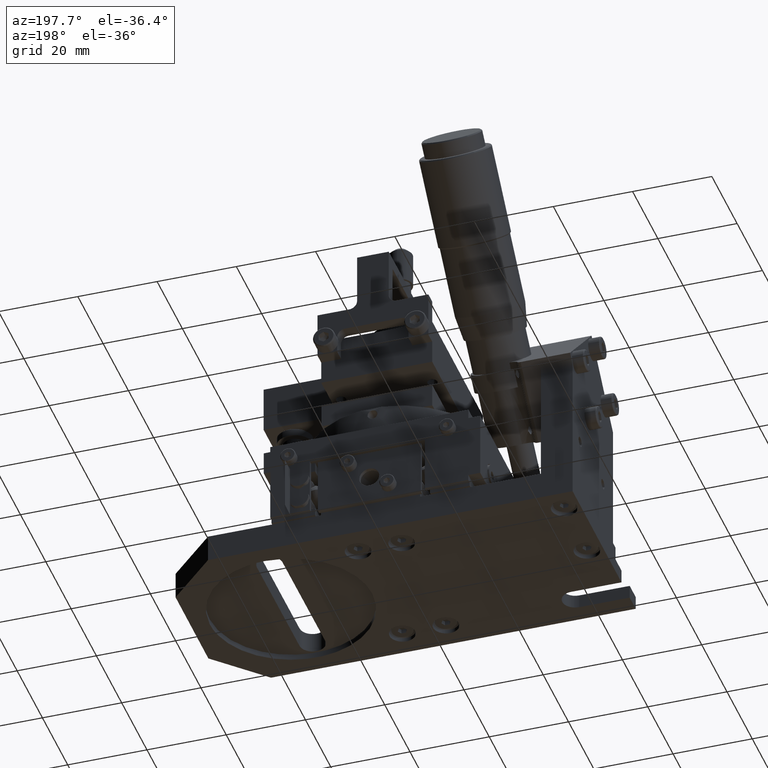
[diagram: clean part render]
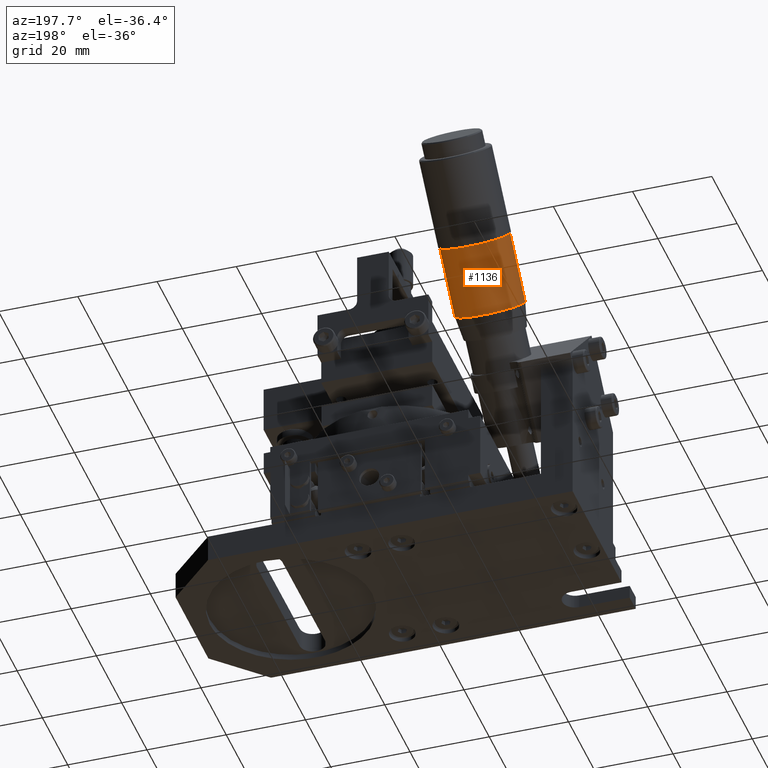
[diagram: same view with one face highlighted and labeled with its STEP entity id]
A machine part, auxiliary view. The second image highlights one B-rep face of the part: STEP entity #1136.
In plain terms, the highlighted face is a freeform B-spline surface patch.
Its self-contained STEP definition (entity closure, byte-faithful):
#1136=ADVANCED_FACE('',(#2340),#43208,.T.);
#2340=FACE_OUTER_BOUND('',#3595,.T.);
#3595=EDGE_LOOP('',(#5974,#5975,#5976,#5977,#5978,#5979));
#5974=ORIENTED_EDGE('',*,*,#35229,.T.);
#5975=ORIENTED_EDGE('',*,*,#35230,.T.);
#5976=ORIENTED_EDGE('',*,*,#35231,.T.);
#5977=ORIENTED_EDGE('',*,*,#35225,.F.);
#5978=ORIENTED_EDGE('',*,*,#35228,.F.);
#5979=ORIENTED_EDGE('',*,*,#35232,.T.);
#12370=PCURVE('',#43206,#18773);
#12373=PCURVE('',#43207,#18776);
#12377=PCURVE('',#43208,#18780);
#12378=PCURVE('',#43208,#18781);
#12379=PCURVE('',#43208,#18782);
#12380=PCURVE('',#43208,#18783);
#12381=PCURVE('',#43208,#18784);
#12382=PCURVE('',#43208,#18785);
#12384=PCURVE('',#43209,#18787);
#12386=PCURVE('',#43209,#18789);
#12393=PCURVE('',#43210,#18796);
#12399=PCURVE('',#43211,#18802);
#18773=DEFINITIONAL_REPRESENTATION('',(#25459),#93713);
#18776=DEFINITIONAL_REPRESENTATION('',(#25463),#93713);
#18780=DEFINITIONAL_REPRESENTATION('',(#25467),#93713);
#18781=DEFINITIONAL_REPRESENTATION('',(#25468),#93713);
#18782=DEFINITIONAL_REPRESENTATION('',(#25470),#93713);
#18783=DEFINITIONAL_REPRESENTATION('',(#25471),#93713);
#18784=DEFINITIONAL_REPRESENTATION('',(#25472),#93713);
#18785=DEFINITIONAL_REPRESENTATION('',(#25474),#93713);
#18787=DEFINITIONAL_REPRESENTATION('',(#25476),#93713);
#18789=DEFINITIONAL_REPRESENTATION('',(#25478),#93713);
#18796=DEFINITIONAL_REPRESENTATION('',(#25480),#93713);
#18802=DEFINITIONAL_REPRESENTATION('',(#25488),#93713);
#25459=B_SPLINE_CURVE_WITH_KNOTS('',1,(#57345,#57346),.UNSPECIFIED.,.F.,
 .F.,(2,2),(-27.3318560862312,-6.68812715183456),.UNSPECIFIED.);
#25463=B_SPLINE_CURVE_WITH_KNOTS('',1,(#57361,#57362),.UNSPECIFIED.,.F.,
 .F.,(2,2),(-54.6637121724624,-27.3318560862317),.UNSPECIFIED.);
#25467=B_SPLINE_CURVE_WITH_KNOTS('',1,(#57374,#57375),.UNSPECIFIED.,.F.,
 .F.,(2,2),(-54.6637121724624,-27.3318560862316),.UNSPECIFIED.);
#25468=B_SPLINE_CURVE_WITH_KNOTS('',1,(#57381,#57382),.UNSPECIFIED.,.F.,
 .F.,(2,2),(-27.3318560862316,-6.68812715183511),.UNSPECIFIED.);
#25469=B_SPLINE_CURVE_WITH_KNOTS('',1,(#57383,#57384),.UNSPECIFIED.,.F.,
 .F.,(2,2),(16.6390755382622,33.6390755382623),.UNSPECIFIED.);
#25470=B_SPLINE_CURVE_WITH_KNOTS('',1,(#57385,#57386),.UNSPECIFIED.,.F.,
 .F.,(2,2),(16.6390755382622,33.6390755382623),.UNSPECIFIED.);
#25471=B_SPLINE_CURVE_WITH_KNOTS('',1,(#57387,#57388),.UNSPECIFIED.,.F.,
 .F.,(2,2),(-27.3318560862312,-6.68812715183456),.UNSPECIFIED.);
#25472=B_SPLINE_CURVE_WITH_KNOTS('',1,(#57389,#57390),.UNSPECIFIED.,.F.,
 .F.,(2,2),(-54.6637121724624,-27.3318560862317),.UNSPECIFIED.);
#25473=B_SPLINE_CURVE_WITH_KNOTS('',1,(#57391,#57392),.UNSPECIFIED.,.F.,
 .F.,(2,2),(0.,17.),.UNSPECIFIED.);
#25474=B_SPLINE_CURVE_WITH_KNOTS('',1,(#57393,#57394),.UNSPECIFIED.,.F.,
 .F.,(2,2),(0.,17.),.UNSPECIFIED.);
#25476=B_SPLINE_CURVE_WITH_KNOTS('',1,(#57397,#57398),.UNSPECIFIED.,.F.,
 .F.,(2,2),(16.6390755382622,33.6390755382623),.UNSPECIFIED.);
#25478=B_SPLINE_CURVE_WITH_KNOTS('',1,(#57404,#57405),.UNSPECIFIED.,.F.,
 .F.,(2,2),(0.,17.),.UNSPECIFIED.);
#25480=B_SPLINE_CURVE_WITH_KNOTS('',1,(#57441,#57442),.UNSPECIFIED.,.F.,
 .F.,(2,2),(-27.3318560862316,-6.68812715183511),.UNSPECIFIED.);
#25488=B_SPLINE_CURVE_WITH_KNOTS('',1,(#57457,#57458),.UNSPECIFIED.,.F.,
 .F.,(2,2),(-54.6637121724624,-27.3318560862316),.UNSPECIFIED.);
#31885=SURFACE_CURVE('',#38282,(#12370,#12380),.PCURVE_S1.);
#31888=SURFACE_CURVE('',#38284,(#12373,#12381),.PCURVE_S1.);
#31889=SURFACE_CURVE('',#38285,(#12377,#12399),.PCURVE_S1.);
#31890=SURFACE_CURVE('',#38286,(#12378,#12393),.PCURVE_S1.);
#31891=SURFACE_CURVE('',#25469,(#12379,#12384),.PCURVE_S1.);
#31892=SURFACE_CURVE('',#25473,(#12382,#12386),.PCURVE_S1.);
#35225=EDGE_CURVE('',#40849,#40852,#31885,.T.);
#35228=EDGE_CURVE('',#40848,#40849,#31888,.T.);
#35229=EDGE_CURVE('',#40850,#40856,#31889,.T.);
#35230=EDGE_CURVE('',#40856,#40851,#31890,.T.);
#35231=EDGE_CURVE('',#40851,#40852,#31891,.T.);
#35232=EDGE_CURVE('',#40848,#40850,#31892,.T.);
#38282=(
BOUNDED_CURVE()
B_SPLINE_CURVE(2,(#57340,#57341,#57342,#57343,#57344),.UNSPECIFIED.,.F.,
 .F.)
B_SPLINE_CURVE_WITH_KNOTS((3,2,3),(-27.3318560862312,-17.0099916190329,
-6.68812715183456),.UNSPECIFIED.)
CURVE()
GEOMETRIC_REPRESENTATION_ITEM()
RATIONAL_B_SPLINE_CURVE((1.,0.829150145950135,1.,0.829150145950135,1.))
REPRESENTATION_ITEM('')
);
#38284=(
BOUNDED_CURVE()
B_SPLINE_CURVE(2,(#57356,#57357,#57358,#57359,#57360),.UNSPECIFIED.,.F.,
 .F.)
B_SPLINE_CURVE_WITH_KNOTS((3,2,3),(-54.6637121724624,-40.997784129347,-27.3318560862317),
 .UNSPECIFIED.)
CURVE()
GEOMETRIC_REPRESENTATION_ITEM()
RATIONAL_B_SPLINE_CURVE((1.,0.707106781186541,1.,0.707106781186541,1.))
REPRESENTATION_ITEM('')
);
#38285=(
BOUNDED_CURVE()
B_SPLINE_CURVE(2,(#57369,#57370,#57371,#57372,#57373),.UNSPECIFIED.,.F.,
 .F.)
B_SPLINE_CURVE_WITH_KNOTS((3,2,3),(-54.6637121724624,-40.997784129347,-27.3318560862316),
 .UNSPECIFIED.)
CURVE()
GEOMETRIC_REPRESENTATION_ITEM()
RATIONAL_B_SPLINE_CURVE((1.,0.707106781186537,1.,0.707106781186537,1.))
REPRESENTATION_ITEM('')
);
#38286=(
BOUNDED_CURVE()
B_SPLINE_CURVE(2,(#57376,#57377,#57378,#57379,#57380),.UNSPECIFIED.,.F.,
 .F.)
B_SPLINE_CURVE_WITH_KNOTS((3,2,3),(-27.3318560862316,-17.0099916190333,
-6.68812715183511),.UNSPECIFIED.)
CURVE()
GEOMETRIC_REPRESENTATION_ITEM()
RATIONAL_B_SPLINE_CURVE((1.,0.829150145950165,1.,0.829150145950165,1.))
REPRESENTATION_ITEM('')
);
#40848=VERTEX_POINT('',#50963);
#40849=VERTEX_POINT('',#50964);
#40850=VERTEX_POINT('',#50965);
#40851=VERTEX_POINT('',#50966);
#40852=VERTEX_POINT('',#50967);
#40856=VERTEX_POINT('',#50971);
#43206=(
BOUNDED_SURFACE()
B_SPLINE_SURFACE(2,1,((#46641,#46642),(#46643,#46644),(#46645,#46646),(#46647,
#46648),(#46649,#46650),(#46651,#46652),(#46653,#46654),(#46655,#46656),
(#46657,#46658)),.UNSPECIFIED.,.T.,.F.,.F.)
B_SPLINE_SURFACE_WITH_KNOTS((3,2,2,2,3),(2,2),(0.,38.4033975437743,76.8067950875485,
115.210192631323,153.613590175097),(0.,34.5752054045278),.UNSPECIFIED.)
GEOMETRIC_REPRESENTATION_ITEM()
RATIONAL_B_SPLINE_SURFACE(((1.,1.),(0.707106781186548,0.707106781186548),
(1.,1.),(0.707106781186548,0.707106781186548),(1.,1.),(0.707106781186548,
0.707106781186548),(1.,1.),(0.707106781186548,0.707106781186548),(1.,1.)))
REPRESENTATION_ITEM('')
SURFACE()
);
#43207=(
BOUNDED_SURFACE()
B_SPLINE_SURFACE(2,1,((#46659,#46660),(#46661,#46662),(#46663,#46664),(#46665,
#46666),(#46667,#46668),(#46669,#46670),(#46671,#46672),(#46673,#46674),
(#46675,#46676)),.UNSPECIFIED.,.T.,.F.,.F.)
B_SPLINE_SURFACE_WITH_KNOTS((3,2,2,2,3),(2,2),(0.,38.4033975437743,76.8067950875485,
115.210192631323,153.613590175097),(0.,34.5752054045278),.UNSPECIFIED.)
GEOMETRIC_REPRESENTATION_ITEM()
RATIONAL_B_SPLINE_SURFACE(((1.,1.),(0.707106781186548,0.707106781186548),
(1.,1.),(0.707106781186548,0.707106781186548),(1.,1.),(0.707106781186548,
0.707106781186548),(1.,1.),(0.707106781186548,0.707106781186548),(1.,1.)))
REPRESENTATION_ITEM('')
SURFACE()
);
#43208=(
BOUNDED_SURFACE()
B_SPLINE_SURFACE(2,1,((#46677,#46678),(#46679,#46680),(#46681,#46682),(#46683,
#46684),(#46685,#46686),(#46687,#46688),(#46689,#46690),(#46691,#46692),
(#46693,#46694)),.UNSPECIFIED.,.T.,.F.,.F.)
B_SPLINE_SURFACE_WITH_KNOTS((3,2,2,2,3),(2,2),(0.,1.5707963267949,3.14159265358979,
4.71238898038469,6.28318530717959),(0.,50.2781510765246),.UNSPECIFIED.)
GEOMETRIC_REPRESENTATION_ITEM()
RATIONAL_B_SPLINE_SURFACE(((1.,1.),(0.707106781186548,0.707106781186548),
(1.,1.),(0.707106781186548,0.707106781186548),(1.,1.),(0.707106781186548,
0.707106781186548),(1.,1.),(0.707106781186548,0.707106781186548),(1.,1.)))
REPRESENTATION_ITEM('')
SURFACE()
);
#43209=(
BOUNDED_SURFACE()
B_SPLINE_SURFACE(2,1,((#46695,#46696),(#46697,#46698),(#46699,#46700),(#46701,
#46702),(#46703,#46704),(#46705,#46706),(#46707,#46708),(#46709,#46710),
(#46711,#46712)),.UNSPECIFIED.,.T.,.F.,.F.)
B_SPLINE_SURFACE_WITH_KNOTS((3,2,2,2,3),(2,2),(0.,1.5707963267949,3.14159265358979,
4.71238898038469,6.28318530717959),(0.,50.2781510765246),.UNSPECIFIED.)
GEOMETRIC_REPRESENTATION_ITEM()
RATIONAL_B_SPLINE_SURFACE(((1.,1.),(0.707106781186548,0.707106781186548),
(1.,1.),(0.707106781186548,0.707106781186548),(1.,1.),(0.707106781186548,
0.707106781186548),(1.,1.),(0.707106781186548,0.707106781186548),(1.,1.)))
REPRESENTATION_ITEM('')
SURFACE()
);
#43210=(
BOUNDED_SURFACE()
B_SPLINE_SURFACE(2,1,((#46717,#46718),(#46719,#46720),(#46721,#46722),(#46723,
#46724),(#46725,#46726),(#46727,#46728),(#46729,#46730),(#46731,#46732),
(#46733,#46734)),.UNSPECIFIED.,.T.,.F.,.F.)
B_SPLINE_SURFACE_WITH_KNOTS((3,2,2,2,3),(2,2),(0.,1.5707963267949,3.14159265358979,
4.71238898038469,6.28318530717959),(0.,78.3760035252572),.UNSPECIFIED.)
GEOMETRIC_REPRESENTATION_ITEM()
RATIONAL_B_SPLINE_SURFACE(((1.,1.),(0.707106781186548,0.707106781186548),
(1.,1.),(0.707106781186548,0.707106781186548),(1.,1.),(0.707106781186548,
0.707106781186548),(1.,1.),(0.707106781186548,0.707106781186548),(1.,1.)))
REPRESENTATION_ITEM('')
SURFACE()
);
#43211=(
BOUNDED_SURFACE()
B_SPLINE_SURFACE(2,1,((#46735,#46736),(#46737,#46738),(#46739,#46740),(#46741,
#46742),(#46743,#46744),(#46745,#46746),(#46747,#46748),(#46749,#46750),
(#46751,#46752)),.UNSPECIFIED.,.T.,.F.,.F.)
B_SPLINE_SURFACE_WITH_KNOTS((3,2,2,2,3),(2,2),(0.,1.5707963267949,3.14159265358979,
4.71238898038469,6.28318530717959),(0.,78.3760035252572),.UNSPECIFIED.)
GEOMETRIC_REPRESENTATION_ITEM()
RATIONAL_B_SPLINE_SURFACE(((1.,1.),(0.707106781186548,0.707106781186548),
(1.,1.),(0.707106781186548,0.707106781186548),(1.,1.),(0.707106781186548,
0.707106781186548),(1.,1.),(0.707106781186548,0.707106781186548),(1.,1.)))
REPRESENTATION_ITEM('')
SURFACE()
);
#46641=CARTESIAN_POINT('',(188.820847493164,34.4572941337694,-48.6521879283741));
#46642=CARTESIAN_POINT('',(171.811886224223,29.6013507081342,-18.9442785646374));
#46643=CARTESIAN_POINT('',(188.820847493164,34.4572941337694,-48.6521879283741));
#46644=CARTESIAN_POINT('',(154.238891817851,17.5882305963092,-30.969137281277));
#46645=CARTESIAN_POINT('',(188.820847493164,34.4572941337694,-48.6521879283741));
#46646=CARTESIAN_POINT('',(171.236307759155,5.15657131968051,-43.3894477979576));
#46647=CARTESIAN_POINT('',(188.820847493164,34.4572941337694,-48.6521879283741));
#46648=CARTESIAN_POINT('',(188.233723700459,-7.27508795694819,-55.8097583146381));
#46649=CARTESIAN_POINT('',(188.820847493164,34.4572941337694,-48.6521879283741));
#46650=CARTESIAN_POINT('',(205.80671810683,4.73803215487674,-43.7848995979985));
#46651=CARTESIAN_POINT('',(188.820847493164,34.4572941337694,-48.6521879283741));
#46652=CARTESIAN_POINT('',(223.379712513202,16.7511522667017,-31.7600408813589));
#46653=CARTESIAN_POINT('',(188.820847493164,34.4572941337694,-48.6521879283741));
#46654=CARTESIAN_POINT('',(206.382296571898,29.1828115433304,-19.3397303646784));
#46655=CARTESIAN_POINT('',(188.820847493164,34.4572941337694,-48.6521879283741));
#46656=CARTESIAN_POINT('',(189.384880630594,41.6144708199591,-6.9194198479978));
#46657=CARTESIAN_POINT('',(188.820847493164,34.4572941337694,-48.6521879283741));
#46658=CARTESIAN_POINT('',(171.811886224223,29.6013507081342,-18.9442785646374));
#46659=CARTESIAN_POINT('',(188.820847493164,34.4572941337694,-48.6521879283741));
#46660=CARTESIAN_POINT('',(171.811886224223,29.6013507081342,-18.9442785646374));
#46661=CARTESIAN_POINT('',(188.820847493164,34.4572941337694,-48.6521879283741));
#46662=CARTESIAN_POINT('',(154.238891817851,17.5882305963092,-30.969137281277));
#46663=CARTESIAN_POINT('',(188.820847493164,34.4572941337694,-48.6521879283741));
#46664=CARTESIAN_POINT('',(171.236307759155,5.15657131968051,-43.3894477979576));
#46665=CARTESIAN_POINT('',(188.820847493164,34.4572941337694,-48.6521879283741));
#46666=CARTESIAN_POINT('',(188.233723700459,-7.27508795694819,-55.8097583146381));
#46667=CARTESIAN_POINT('',(188.820847493164,34.4572941337694,-48.6521879283741));
#46668=CARTESIAN_POINT('',(205.80671810683,4.73803215487674,-43.7848995979985));
#46669=CARTESIAN_POINT('',(188.820847493164,34.4572941337694,-48.6521879283741));
#46670=CARTESIAN_POINT('',(223.379712513202,16.7511522667017,-31.7600408813589));
#46671=CARTESIAN_POINT('',(188.820847493164,34.4572941337694,-48.6521879283741));
#46672=CARTESIAN_POINT('',(206.382296571898,29.1828115433304,-19.3397303646784));
#46673=CARTESIAN_POINT('',(188.820847493164,34.4572941337694,-48.6521879283741));
#46674=CARTESIAN_POINT('',(189.384880630594,41.6144708199591,-6.9194198479978));
#46675=CARTESIAN_POINT('',(188.820847493164,34.4572941337694,-48.6521879283741));
#46676=CARTESIAN_POINT('',(171.811886224223,29.6013507081342,-18.9442785646374));
#46677=CARTESIAN_POINT('',(188.832624551915,45.9400552530171,-72.4386031076803));
#46678=CARTESIAN_POINT('',(188.808881541142,10.3880336812849,-36.8865894641979));
#46679=CARTESIAN_POINT('',(197.532623581847,45.9371501549717,-72.4356980102827));
#46680=CARTESIAN_POINT('',(197.508880571074,10.3851285832394,-36.8836843668003));
#46681=CARTESIAN_POINT('',(197.532623581847,52.0889784653527,-66.2838683280179));
#46682=CARTESIAN_POINT('',(197.508880571074,16.5369568936205,-30.7318546845355));
#46683=CARTESIAN_POINT('',(197.532623581847,58.2408067757337,-60.1320386457531));
#46684=CARTESIAN_POINT('',(197.508880571074,22.6887852040016,-24.5800250022706));
#46685=CARTESIAN_POINT('',(188.832624551915,58.2437118737792,-60.1349437431507));
#46686=CARTESIAN_POINT('',(188.808881541142,22.6916903020471,-24.5829300996681));
#46687=CARTESIAN_POINT('',(180.132625521984,58.2466169718247,-60.1378488405483));
#46688=CARTESIAN_POINT('',(180.10888251121,22.6945954000926,-24.5858351970657));
#46689=CARTESIAN_POINT('',(180.132625521984,52.0947886614436,-66.2896785228131));
#46690=CARTESIAN_POINT('',(180.10888251121,16.5427670897115,-30.7376648793306));
#46691=CARTESIAN_POINT('',(180.132625521984,45.9429603510626,-72.4415082050779));
#46692=CARTESIAN_POINT('',(180.10888251121,10.3909387793304,-36.8894945615954));
#46693=CARTESIAN_POINT('',(188.832624551915,45.9400552530171,-72.4386031076803));
#46694=CARTESIAN_POINT('',(188.808881541142,10.3880336812849,-36.8865894641979));
#46695=CARTESIAN_POINT('',(188.832624551915,45.9400552530171,-72.4386031076803));
#46696=CARTESIAN_POINT('',(188.808881541142,10.3880336812849,-36.8865894641979));
#46697=CARTESIAN_POINT('',(197.532623581847,45.9371501549717,-72.4356980102827));
#46698=CARTESIAN_POINT('',(197.508880571074,10.3851285832394,-36.8836843668003));
#46699=CARTESIAN_POINT('',(197.532623581847,52.0889784653527,-66.2838683280179));
#46700=CARTESIAN_POINT('',(197.508880571074,16.5369568936205,-30.7318546845355));
#46701=CARTESIAN_POINT('',(197.532623581847,58.2408067757337,-60.1320386457531));
#46702=CARTESIAN_POINT('',(197.508880571074,22.6887852040016,-24.5800250022706));
#46703=CARTESIAN_POINT('',(188.832624551915,58.2437118737792,-60.1349437431507));
#46704=CARTESIAN_POINT('',(188.808881541142,22.6916903020471,-24.5829300996681));
#46705=CARTESIAN_POINT('',(180.132625521984,58.2466169718247,-60.1378488405483));
#46706=CARTESIAN_POINT('',(180.10888251121,22.6945954000926,-24.5858351970657));
#46707=CARTESIAN_POINT('',(180.132625521984,52.0947886614436,-66.2896785228131));
#46708=CARTESIAN_POINT('',(180.10888251121,16.5427670897115,-30.7376648793306));
#46709=CARTESIAN_POINT('',(180.132625521984,45.9429603510626,-72.4415082050779));
#46710=CARTESIAN_POINT('',(180.10888251121,10.3909387793304,-36.8894945615954));
#46711=CARTESIAN_POINT('',(188.832624551915,45.9400552530171,-72.4386031076803));
#46712=CARTESIAN_POINT('',(188.808881541142,10.3880336812849,-36.8865894641979));
#46717=CARTESIAN_POINT('',(188.852156552478,81.3384737264375,-95.5333570663427));
#46718=CARTESIAN_POINT('',(180.732493472944,32.4432511684804,-34.8198807116336));
#46719=CARTESIAN_POINT('',(188.852156552478,81.3384737264375,-95.5333570663427));
#46720=CARTESIAN_POINT('',(172.375718361299,26.7304545418957,-40.5382595900697));
#46721=CARTESIAN_POINT('',(188.852156552478,81.3384737264375,-95.5333570663427));
#46722=CARTESIAN_POINT('',(180.458779176994,20.8186231011639,-46.4446941682925));
#46723=CARTESIAN_POINT('',(188.852156552478,81.3384737264375,-95.5333570663427));
#46724=CARTESIAN_POINT('',(188.54183999269,14.9067916604321,-52.3511287465154));
#46725=CARTESIAN_POINT('',(188.852156552478,81.3384737264375,-95.5333570663427));
#46726=CARTESIAN_POINT('',(196.898615104335,20.6195882870167,-46.6327498680792));
#46727=CARTESIAN_POINT('',(188.852156552478,81.3384737264375,-95.5333570663427));
#46728=CARTESIAN_POINT('',(205.255390215981,26.3323849136014,-40.9143709896431));
#46729=CARTESIAN_POINT('',(188.852156552478,81.3384737264375,-95.5333570663427));
#46730=CARTESIAN_POINT('',(197.172329400286,32.2442163543332,-35.0079364114203));
#46731=CARTESIAN_POINT('',(188.852156552478,81.3384737264375,-95.5333570663427));
#46732=CARTESIAN_POINT('',(189.08926858459,38.156047795065,-29.1015018331975));
#46733=CARTESIAN_POINT('',(188.852156552478,81.3384737264375,-95.5333570663427));
#46734=CARTESIAN_POINT('',(180.732493472944,32.4432511684804,-34.8198807116336));
#46735=CARTESIAN_POINT('',(188.852156552478,81.3384737264375,-95.5333570663427));
#46736=CARTESIAN_POINT('',(180.732493472944,32.4432511684804,-34.8198807116336));
#46737=CARTESIAN_POINT('',(188.852156552478,81.3384737264375,-95.5333570663427));
#46738=CARTESIAN_POINT('',(172.375718361299,26.7304545418957,-40.5382595900697));
#46739=CARTESIAN_POINT('',(188.852156552478,81.3384737264375,-95.5333570663427));
#46740=CARTESIAN_POINT('',(180.458779176994,20.8186231011639,-46.4446941682925));
#46741=CARTESIAN_POINT('',(188.852156552478,81.3384737264375,-95.5333570663427));
#46742=CARTESIAN_POINT('',(188.54183999269,14.9067916604321,-52.3511287465154));
#46743=CARTESIAN_POINT('',(188.852156552478,81.3384737264375,-95.5333570663427));
#46744=CARTESIAN_POINT('',(196.898615104335,20.6195882870167,-46.6327498680792));
#46745=CARTESIAN_POINT('',(188.852156552478,81.3384737264375,-95.5333570663427));
#46746=CARTESIAN_POINT('',(205.255390215981,26.3323849136014,-40.9143709896431));
#46747=CARTESIAN_POINT('',(188.852156552478,81.3384737264375,-95.5333570663427));
#46748=CARTESIAN_POINT('',(197.172329400286,32.2442163543332,-35.0079364114203));
#46749=CARTESIAN_POINT('',(188.852156552478,81.3384737264375,-95.5333570663427));
#46750=CARTESIAN_POINT('',(189.08926858459,38.156047795065,-29.1015018331975));
#46751=CARTESIAN_POINT('',(188.852156552478,81.3384737264375,-95.5333570663427));
#46752=CARTESIAN_POINT('',(180.732493472944,32.4432511684804,-34.8198807116336));
#50963=CARTESIAN_POINT('',(194.865304504849,23.8816336017784,-46.9201533600215));
#50964=CARTESIAN_POINT('',(182.768173624282,32.7292966731142,-38.0805672478477));
#50965=CARTESIAN_POINT('',(194.873332468776,35.9024488819496,-58.9409659595008));
#50966=CARTESIAN_POINT('',(188.824767028492,34.1744521072367,-60.6730025856787));
#50967=CARTESIAN_POINT('',(188.816739064565,22.1536368270654,-48.6521899861995));
#50971=CARTESIAN_POINT('',(182.776201588208,44.7501119532856,-50.1013798473272));
#57340=CARTESIAN_POINT('',(182.768173624282,32.7292966731142,-38.0805672478477));
#57341=CARTESIAN_POINT('',(178.552043026919,29.8470967416737,-40.9655835172319));
#57342=CARTESIAN_POINT('',(180.751553475201,26.0013461155929,-44.8098660827209));
#57343=CARTESIAN_POINT('',(182.951063923483,22.155595489512,-48.6541486482098));
#57344=CARTESIAN_POINT('',(188.816739064565,22.1536368270654,-48.6521899861995));
#57345=CARTESIAN_POINT('',(0.,12.3036579926464));
#57346=CARTESIAN_POINT('',(57.9909789637639,12.3036579926458));
#57356=CARTESIAN_POINT('',(194.865304504849,23.8816336017784,-46.9201533600214));
#57357=CARTESIAN_POINT('',(201.118690726363,28.1565271143737,-42.6410826407469));
#57358=CARTESIAN_POINT('',(195.070125286079,32.5803586500417,-38.22128958466));
#57359=CARTESIAN_POINT('',(189.021559845795,37.0041901857097,-33.8014965285731));
#57360=CARTESIAN_POINT('',(182.768173624282,32.7292966731142,-38.0805672478477));
#57361=CARTESIAN_POINT('',(76.8067950875485,12.3036579926456));
#57362=CARTESIAN_POINT('',(153.613590175097,12.3036579926464));
#57369=CARTESIAN_POINT('',(194.873332468776,35.9024488819496,-58.9409659595008));
#57370=CARTESIAN_POINT('',(201.12671869029,40.1773423945448,-54.6618952402264));
#57371=CARTESIAN_POINT('',(195.078153250006,44.6011739302129,-50.2421021841394));
#57372=CARTESIAN_POINT('',(189.029587809722,49.0250054658811,-45.8223091280525));
#57373=CARTESIAN_POINT('',(182.776201588208,44.7501119532856,-50.1013798473272));
#57374=CARTESIAN_POINT('',(0.769614584730244,16.6390755382623));
#57375=CARTESIAN_POINT('',(3.9112072383201,16.6390755382623));
#57376=CARTESIAN_POINT('',(182.776201588208,44.7501119532856,-50.1013798473272));
#57377=CARTESIAN_POINT('',(178.560070990846,41.867912021845,-52.9863961167114));
#57378=CARTESIAN_POINT('',(180.759581439128,38.0221613957644,-56.8306786822));
#57379=CARTESIAN_POINT('',(182.95909188741,34.1764107696838,-60.6749612476885));
#57380=CARTESIAN_POINT('',(188.824767028492,34.1744521072367,-60.6730025856787));
#57381=CARTESIAN_POINT('',(3.9112072383201,16.6390755382623));
#57382=CARTESIAN_POINT('',(6.28318530717959,16.6390755382622));
#57383=CARTESIAN_POINT('',(188.824767028492,34.1744521072367,-60.6730025856787));
#57384=CARTESIAN_POINT('',(188.816739064565,22.1536368270654,-48.6521899861995));
#57385=CARTESIAN_POINT('',(6.28318530717959,16.6390755382622));
#57386=CARTESIAN_POINT('',(6.28318530717959,33.6390755382623));
#57387=CARTESIAN_POINT('',(3.91120723832007,33.6390755382623));
#57388=CARTESIAN_POINT('',(6.28318530717959,33.6390755382623));
#57389=CARTESIAN_POINT('',(0.769614584730189,33.6390755382623));
#57390=CARTESIAN_POINT('',(3.91120723832007,33.6390755382623));
#57391=CARTESIAN_POINT('',(194.865304504849,23.8816336017784,-46.9201533600215));
#57392=CARTESIAN_POINT('',(194.873332468776,35.9024488819496,-58.9409659595008));
#57393=CARTESIAN_POINT('',(0.769614584730189,33.6390755382623));
#57394=CARTESIAN_POINT('',(0.769614584730244,16.6390755382623));
#57397=CARTESIAN_POINT('',(0.,16.6390755382622));
#57398=CARTESIAN_POINT('',(0.,33.6390755382623));
#57404=CARTESIAN_POINT('',(0.769614584730189,33.6390755382623));
#57405=CARTESIAN_POINT('',(0.769614584730244,16.6390755382623));
#57441=CARTESIAN_POINT('',(0.,58.6488704068546));
#57442=CARTESIAN_POINT('',(2.37197806885938,58.6488704068545));
#57457=CARTESIAN_POINT('',(3.14159265358979,58.6488704068545));
#57458=CARTESIAN_POINT('',(6.28318530717959,58.6488704068546));
#93713=(
GEOMETRIC_REPRESENTATION_CONTEXT(2)
PARAMETRIC_REPRESENTATION_CONTEXT()
REPRESENTATION_CONTEXT('pspace','')
);